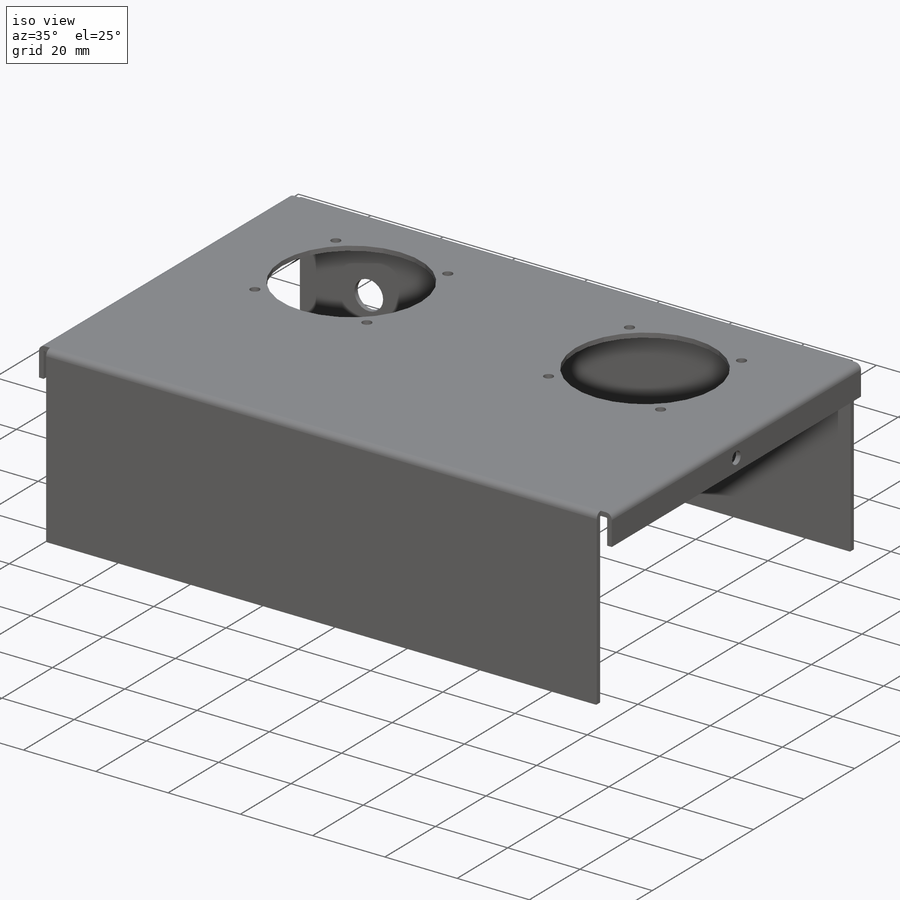
[diagram: iso view]
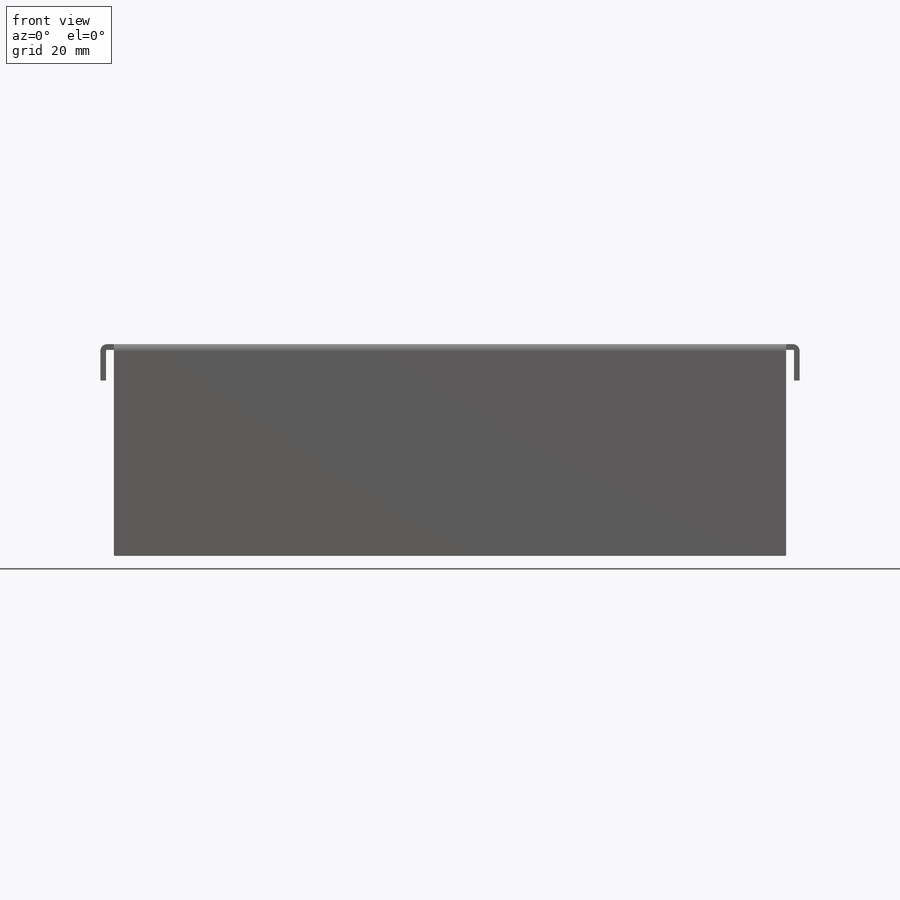
[diagram: front view]
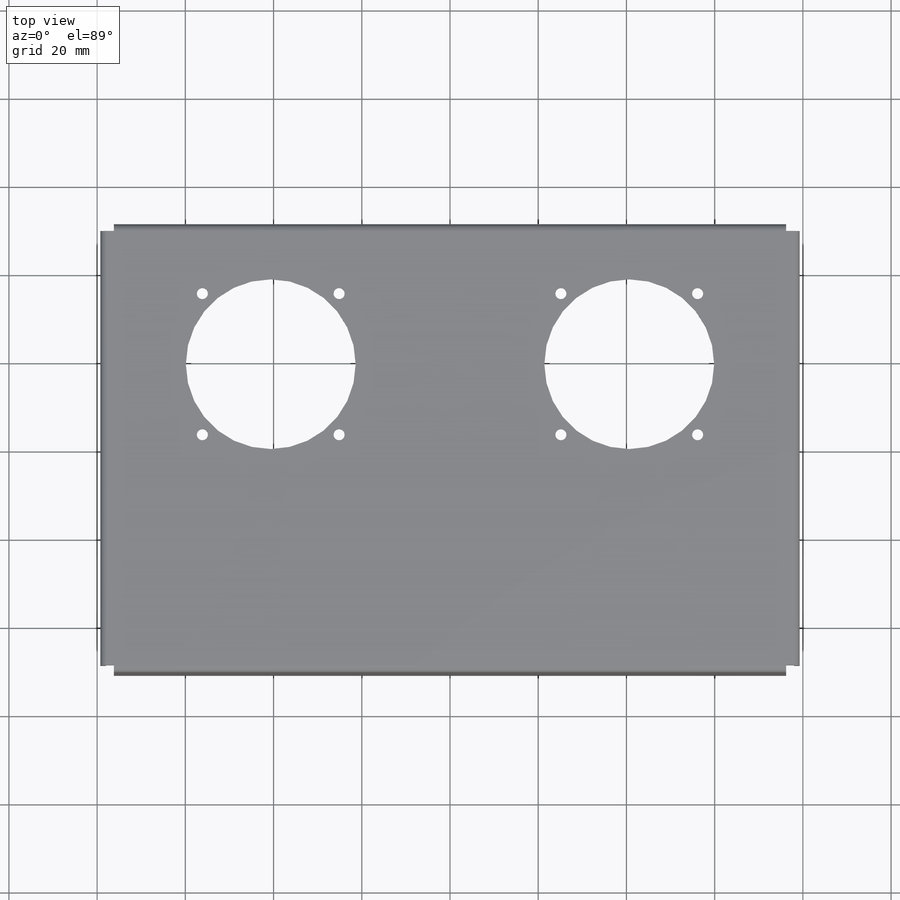
[diagram: top view]
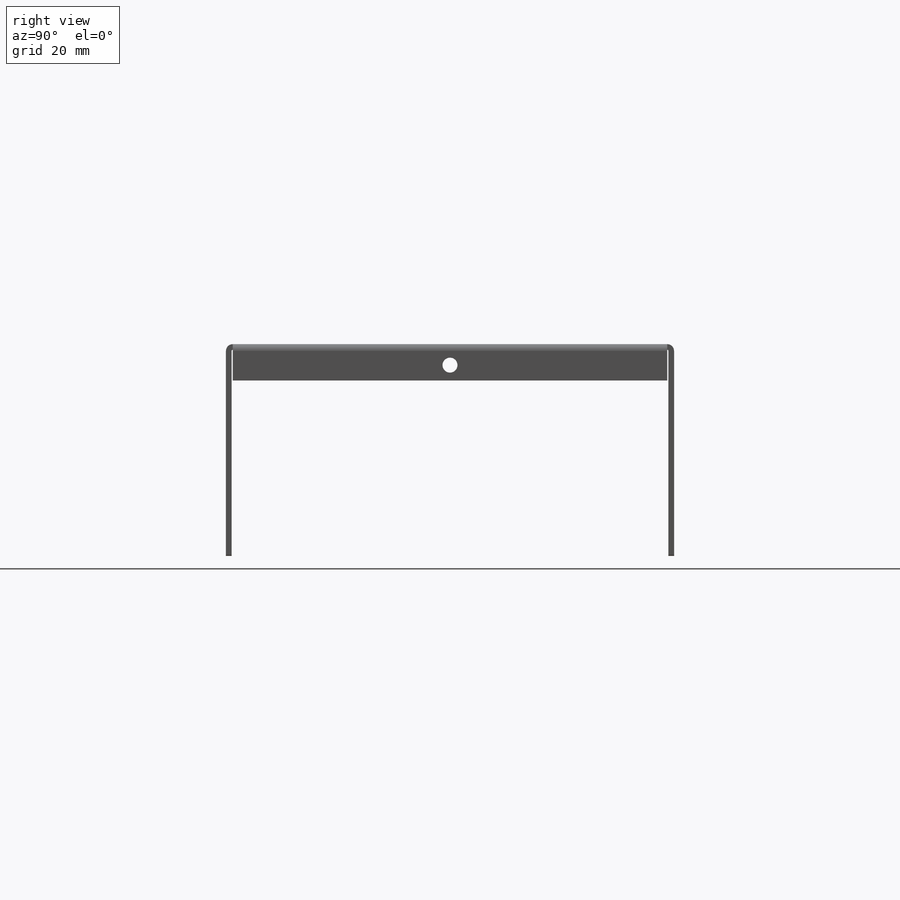
[diagram: right view]
SOLIDWORKS PART (.sldprt)
format: sldprt  version: not decoded by parser v0  size: 1,137,152 bytes
history: native  units: mm
features: sketch x35, sheet_metal_op x14, hole x2, mirror x2, material x1, cut_extrude x1 + 10 further entries (+13 scaffold rows collapsed; 10 parser-record rows omitted)
feature tree (88):
  scaffold x13  (default folders/planes/origin — collapsed)
  material  "5052-H36"
  sketch  "Sketch1"  dims[c1.D1=152.4mm c1.D2=101.6mm c2.D1=1.905mm c2.D2=0.5 c2.D3=0.0mm c2.D6=250.0mm]
  sheet_metal_op  "Base-Flange1"
  sketch  "Sketch14"
  sketch  "Sketch15"  dims[D1=0.254mm D4=90.0deg D5=1.0 D8=~0.32258mm D9=~0.32258mm]
  sheet_metal_op  "EdgeBend2"  Edge-Flange2=0
  sketch  "Sketch20"
  sketch  "Sketch21"
  sheet_metal_op  "EdgeBend3"
  sheet_metal_op  "EdgeBend4"
  sketch  "Sketch22"  dims[c1.D3=38.5mm c1.D6=2.5mm c1.D7=38.5mm c1.D1=60.5mm c1.D2=47.0mm c1.D4=31.0mm c1.D5=32.0mm c2.D7=31.75mm c2.D8=81.28mm]
  cut_extrude  "Cut-Extrude1"  Depth=2.54mm
  sketch  "Sketch23"  dims[c1.D1=7.62mm c1.D2=7.62mm c2.D2=114.3mm c2.D3=25.4mm]
  hole  "M3 Clearance Hole1"  Diameter=3.4mm Depth=158.53664mm
  sketch  "Sketch26"  dims[D1=4.7625mm]
  sketch  "Sketch25"  dims[hole-wizard template sketch: 60 standard entries collapsed; hole parameters kept: c18.Thru Hole Depth=~158.53664mm]
  mirror  "Mirror1"
  sketch  "Sketch27"  dims[c1.D1=~9.851203mm c1.D2=~61.283517mm c2.D1=86.8934mm c2.D2=7.2898mm c2.D3=7.62mm c2.D4=12.7mm]
  sketch  "Sketch28"  dims[c1.D1=~23.56087mm c1.D2=~90.145836mm c2.D1=99.568mm c2.D2=23.5966mm c2.D3=25.4mm]
  mirror  "Split Line2"
  hole  "5/16 (0.3125) Diameter Hole1"  Diameter=7.9375mm Depth=1.28932mm
  sketch  "Sketch29"
  sketch  "Sketch30"  dims[Hole Dia.=7.9375mm Hole Depth=~1.28932mm Drill Angle=118.0deg]
  sketch  "Bend-Lines1"
  sketch  "Bounding-Box1"
  sheet_metal_op  "Sheet-Metal(1)"
  "Flat-Pattern(1)"
  sketch  "Bend-Lines2"
  sketch  "Bounding-Box2"
  parser-record x10  (decoder bookkeeping rows leaked as tree rows — omitted from the tree; the rows remain in map.json)
  sheet_metal_op  "Sheet-Metal(2)"
  "Flat-Pattern(1)"
  sketch  "Bend-Lines2"
  sketch  "Bounding-Box2"
  sheet_metal_op  "Sheet-Metal(3)"
  "Flat-Pattern(1)"
  sketch  "Bend-Lines2"
  sketch  "Bounding-Box2"
  sheet_metal_op  "Sheet-Metal(4)"
  "Flat-Pattern(1)"
  sketch  "Bend-Lines2"
  sketch  "Bounding-Box2"
  sheet_metal_op  "Sheet-Metal(6)"
  "Flat-Pattern(1)"
  sketch  "Bend-Lines2"
  sketch  "Bounding-Box2"
  sheet_metal_op  "Sheet-Metal(7)"
  "Flat-Pattern(1)"
  sketch  "Bend-Lines2"
  sketch  "Bounding-Box2"
  sheet_metal_op  "Sheet-Metal(8)"
  "Flat-Pattern(1)"
  sketch  "Bend-Lines2"
  sketch  "Bounding-Box2"
  sheet_metal_op  "Sheet-Metal(9)"
  "Flat-Pattern(1)"
  sketch  "Bend-Lines2"
  sketch  "Bounding-Box2"
  sheet_metal_op  "Sheet-Metal(10)"
  "Flat-Pattern(1)"
  sketch  "Bend-Lines2"
  sketch  "Bounding-Box2"
  sheet_metal_op  "Sheet-Metal(11)"
  "Flat-Pattern(1)"
  sketch  "Bend-Lines2"
  sketch  "Bounding-Box2"
decode coverage: 13 of 54 modeling features carry decoded parameters; 10 rows unclassified (native names shown)
note: ~ marks probable driven/reference dimensions
note: suppression state not decoded; provenance and decode notes live in map.json
